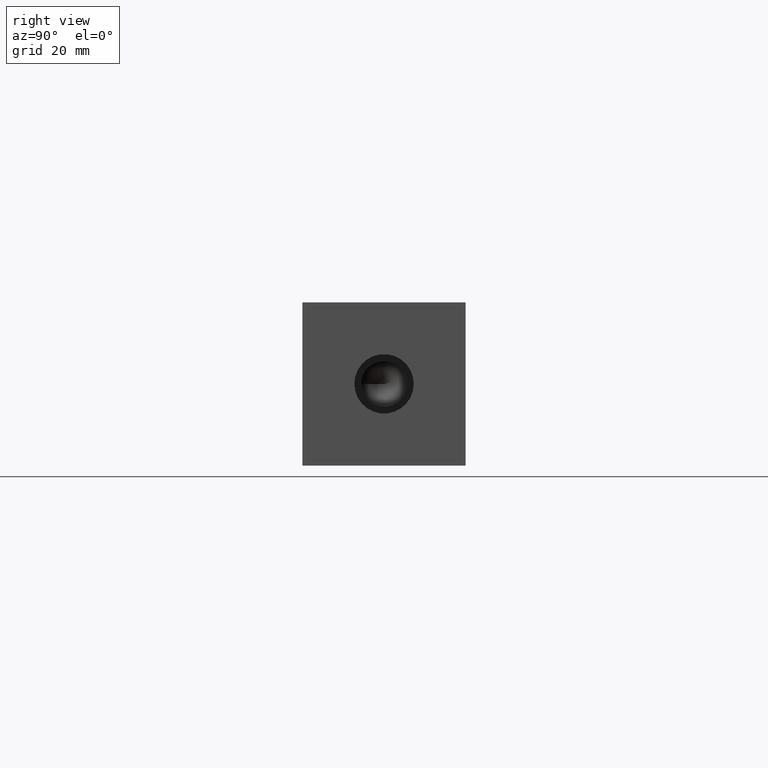
[diagram: clean part render]
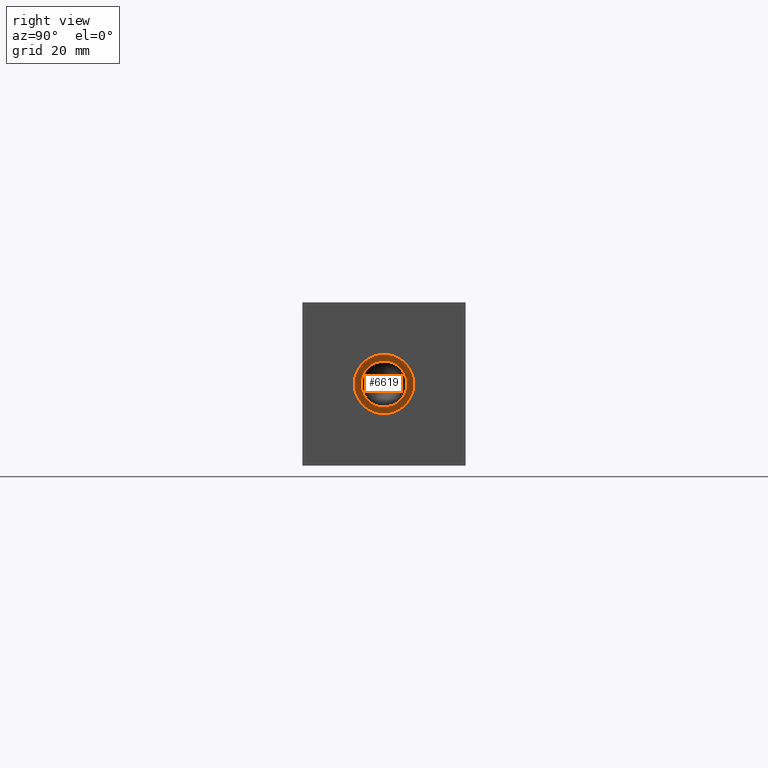
[diagram: same view with one face highlighted and labeled with its STEP entity id]
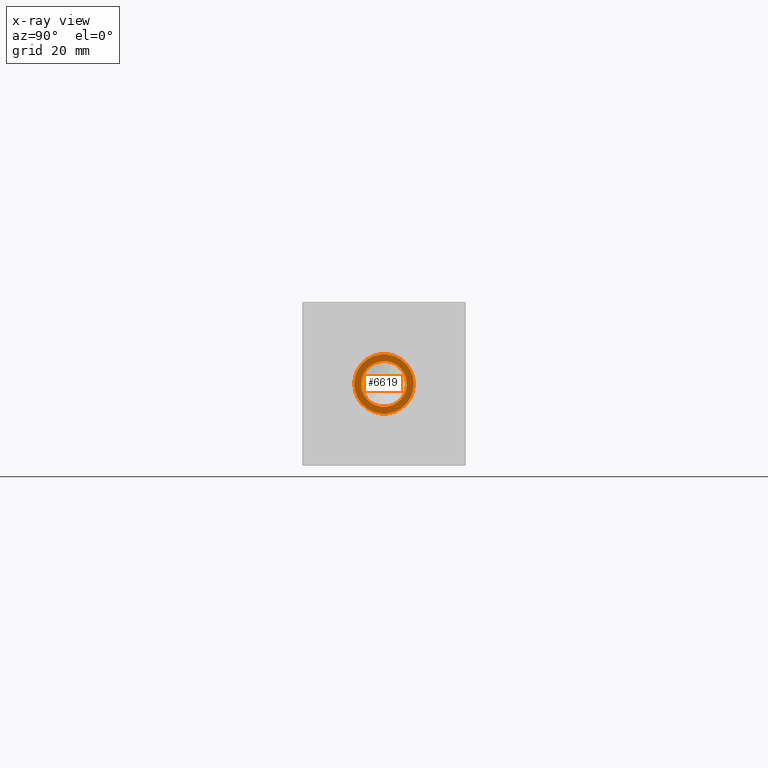
[diagram: x-ray of the same camera — body ghosted, the highlighted face saturated]
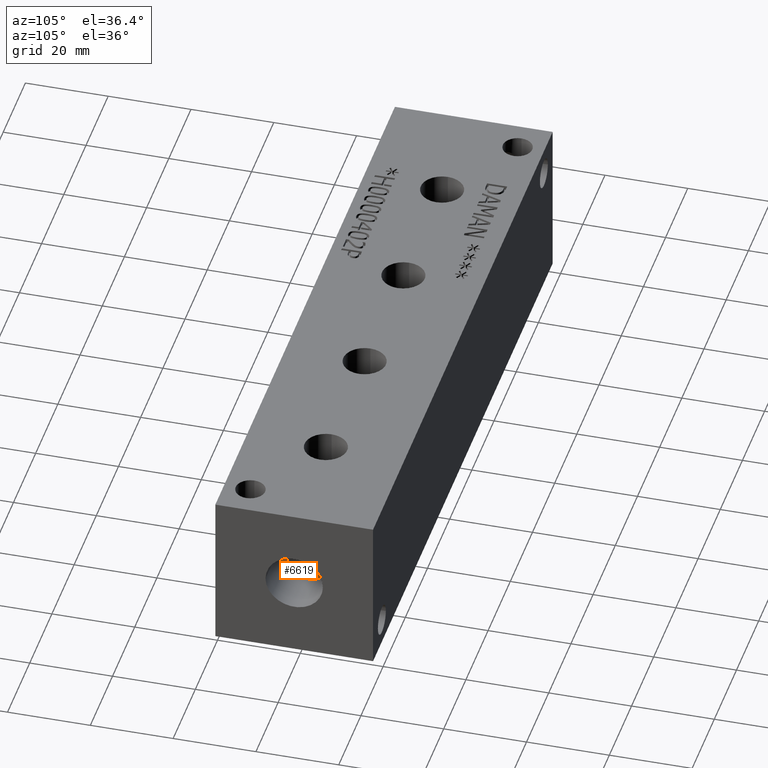
[diagram: same view with one face highlighted and labeled with its STEP entity id]
A machine part, right view. The second image highlights one B-rep face of the part: STEP entity #6619.
The next image is the same camera in x-ray: the body ghosted, the highlighted face saturated — about 0% of this face is hidden behind the body in this view.
A second angle (auxiliary view) of the same face is appended — the face is thin or edge-on in the first view.
In plain terms, the highlighted planar face has unit normal (1, 0, 0).
Its self-contained STEP definition (entity closure, byte-faithful):
#90=CIRCLE('',#6932,6.9342);
#91=CIRCLE('',#6933,6.9342);
#92=CIRCLE('',#6934,5.3594);
#141=FACE_BOUND('',#1070,.T.);
#365=PLANE('',#6931);
#695=FACE_OUTER_BOUND('',#1069,.T.);
#1069=EDGE_LOOP('',(#5855,#5856));
#1070=EDGE_LOOP('',(#5857));
#3193=VERTEX_POINT('',#11171);
#3194=VERTEX_POINT('',#11172);
#3195=VERTEX_POINT('',#11175);
#4089=EDGE_CURVE('',#3193,#3194,#90,.T.);
#4090=EDGE_CURVE('',#3194,#3193,#91,.T.);
#4091=EDGE_CURVE('',#3195,#3195,#92,.T.);
#5855=ORIENTED_EDGE('',*,*,#4089,.T.);
#5856=ORIENTED_EDGE('',*,*,#4090,.T.);
#5857=ORIENTED_EDGE('',*,*,#4091,.F.);
#6619=ADVANCED_FACE('',(#695,#141),#365,.T.);
#6931=AXIS2_PLACEMENT_3D('',#11170,#8183,#8184);
#6932=AXIS2_PLACEMENT_3D('',#11173,#8185,#8186);
#6933=AXIS2_PLACEMENT_3D('',#11174,#8187,#8188);
#6934=AXIS2_PLACEMENT_3D('',#11176,#8189,#8190);
#8183=DIRECTION('center_axis',(1.,0.,0.));
#8184=DIRECTION('ref_axis',(0.,1.,0.));
#8185=DIRECTION('center_axis',(1.,0.,0.));
#8186=DIRECTION('ref_axis',(0.,1.,0.));
#8187=DIRECTION('center_axis',(1.,0.,0.));
#8188=DIRECTION('ref_axis',(0.,1.,0.));
#8189=DIRECTION('center_axis',(1.,0.,0.));
#8190=DIRECTION('ref_axis',(0.,1.,0.));
#11170=CARTESIAN_POINT('Origin',(150.5204,19.05,19.05));
#11171=CARTESIAN_POINT('',(150.5204,25.9842,19.05));
#11172=CARTESIAN_POINT('',(150.5204,12.1158,19.05));
#11173=CARTESIAN_POINT('Origin',(150.5204,19.05,19.05));
#11174=CARTESIAN_POINT('Origin',(150.5204,19.05,19.05));
#11175=CARTESIAN_POINT('',(150.5204,13.6906,19.05));
#11176=CARTESIAN_POINT('Origin',(150.5204,19.05,19.05));